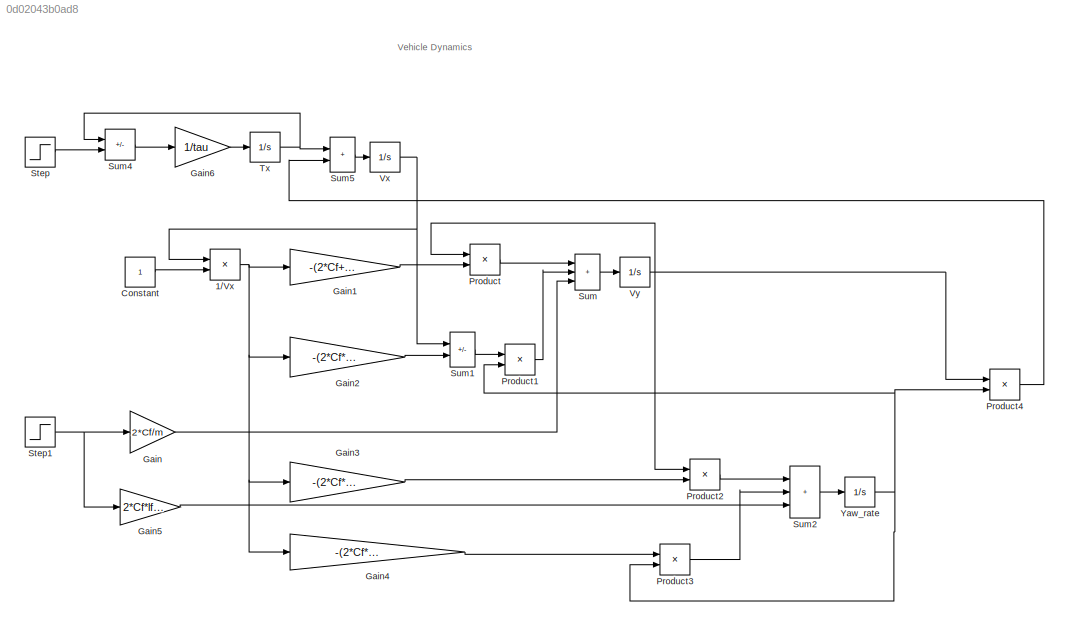
MODEL slx_0d02043b0ad8
KIND model
CONFIG AbsTol = auto
CONFIG EnableMultiTasking = off
CONFIG FixedStep = auto
CONFIG MaxStep = auto
CONFIG MinStep = auto
CONFIG RelTol = 1e-3
CONFIG SampleTimeConstraint = Unconstrained
CONFIG SolverName = VariableStepAuto
CONFIG StartTime = 0.0
CONFIG StopTime = 10.0
BLOCK [Product] 1//Vx
  Inputs = /*
  Ports = [2, 1]
BLOCK [Constant] Constant
BLOCK [Gain] Gain
  Gain = 2*Cf/m
BLOCK [Gain] Gain1
  Gain = -(2*Cf+2*Cr)/m
BLOCK [Gain] Gain2
  Gain = -(2*Cf*lf-2*Cr*lr)/m
BLOCK [Gain] Gain3
  Gain = -(2*Cf*lf-2*Cr*lr)/Iz
BLOCK [Gain] Gain4
  Gain = -(2*Cf*lf^2+2*Cr*lr^2)/Iz
BLOCK [Gain] Gain5
  Gain = 2*Cf*lf/Iz
BLOCK [Gain] Gain6
  Gain = 1/tau
BLOCK [Product] Product
  Ports = [2, 1]
BLOCK [Product] Product1
  Ports = [2, 1]
BLOCK [Product] Product2
  Ports = [2, 1]
BLOCK [Product] Product3
  Ports = [2, 1]
BLOCK [Product] Product4
  Ports = [2, 1]
BLOCK [Step] Step
  SampleTime = 0
BLOCK [Step] Step1
  SampleTime = 0
BLOCK [Sum] Sum
  IconShape = rectangular
  Inputs = +++
  Ports = [3, 1]
BLOCK [Sum] Sum1
  IconShape = rectangular
  Inputs = -+
  Ports = [2, 1]
BLOCK [Sum] Sum2
  IconShape = rectangular
  Inputs = +++
  Ports = [3, 1]
BLOCK [Sum] Sum4
  IconShape = rectangular
  Inputs = -+
  Ports = [2, 1]
BLOCK [Sum] Sum5
  IconShape = rectangular
  Ports = [2, 1]
BLOCK [Integrator] Tx
  Ports = [1, 1]
BLOCK [Integrator] Vx
  InitialCondition = v0
  Ports = [1, 1]
BLOCK [Integrator] Vy
  Ports = [1, 1]
BLOCK [Integrator] Yaw_rate 
  Ports = [1, 1]
ANNOTATION (root): Vehicle Dynamics
NET 1//Vx:1 -> Gain1:1, Gain2:1, Gain3:1, Gain4:1
LINE Constant:1 -> 1//Vx:2
LINE Gain1:1 -> Product:2
LINE Gain2:1 -> Sum1:2
LINE Gain3:1 -> Product2:2
LINE Gain4:1 -> Product3:1
LINE Gain5:1 -> Sum2:3
LINE Gain6:1 -> Tx:1
LINE Gain:1 -> Sum:3
LINE Product1:1 -> Sum:2
LINE Product2:1 -> Sum2:1
LINE Product3:1 -> Sum2:2
LINE Product4:1 -> Sum5:2
LINE Product:1 -> Sum:1
NET Step1:1 -> Gain5:1, Gain:1
LINE Step:1 -> Sum4:2
LINE Sum1:1 -> Product1:1
LINE Sum2:1 -> Yaw_rate :1
LINE Sum4:1 -> Gain6:1
LINE Sum5:1 -> Vx:1
LINE Sum:1 -> Vy:1
NET Tx:1 -> Sum4:1, Sum5:1
NET Vx:1 -> 1//Vx:1, Sum1:1
NET Vy:1 -> Product2:1, Product4:1, Product:1
NET Yaw_rate :1 -> Product1:2, Product3:2, Product4:2
note: NET lines group one-source signal fan-out (src -> all destinations, sorted); 1:1 wires keep LINE
